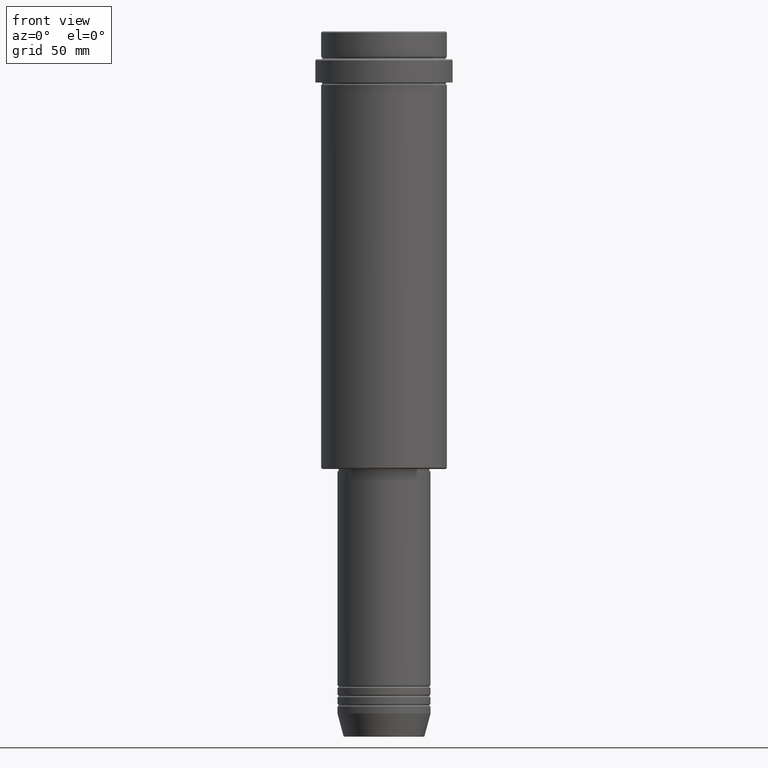
[diagram: clean part render]
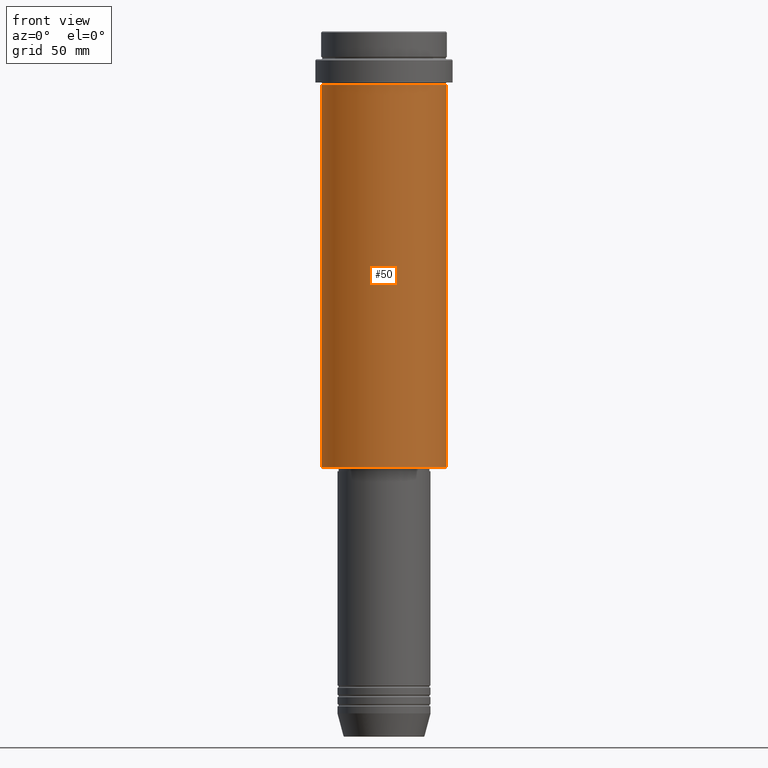
[diagram: same view with one face highlighted and labeled with its STEP entity id]
A machine part, front view. The second image highlights one B-rep face of the part: STEP entity #50.
In plain terms, the highlighted cylindrical surface (partial cylindrical patch) has radius 27 mm, axis along (-0, -0, 1).
Its self-contained STEP definition (entity closure, byte-faithful):
#9 = EDGE_CURVE ( 'NONE', #272, #1048, #648, .T. ) ;
#23 = EDGE_CURVE ( 'NONE', #129, #1048, #727, .T. ) ;
#25 = VECTOR ( 'NONE', #1369, 1000.000000000000000 ) ;
#50 = ADVANCED_FACE ( 'NONE', ( #234 ), #127, .T. ) ;
#103 = DIRECTION ( 'NONE',  ( -0.000000000000000000, -0.000000000000000000, 1.000000000000000000 ) ) ;
#127 = CYLINDRICAL_SURFACE ( 'NONE', #752, 27.00000000000000355 ) ;
#129 = VERTEX_POINT ( 'NONE', #1411 ) ;
#188 = DIRECTION ( 'NONE',  ( -1.000000000000000000, 0.000000000000000000, 0.000000000000000000 ) ) ;
#226 = ORIENTED_EDGE ( 'NONE', *, *, #9, .T. ) ;
#234 = FACE_OUTER_BOUND ( 'NONE', #319, .T. ) ;
#272 = VERTEX_POINT ( 'NONE', #531 ) ;
#273 = CARTESIAN_POINT ( 'NONE',  ( -27.00000000000000355, 3.306546357697854128E-15, -187.5000000000000284 ) ) ;
#281 = VECTOR ( 'NONE', #871, 1000.000000000000000 ) ;
#319 = EDGE_LOOP ( 'NONE', ( #1264, #466, #226, #1417 ) ) ;
#343 = CARTESIAN_POINT ( 'NONE',  ( 0.000000000000000000, 0.000000000000000000, -23.00000000000001421 ) ) ;
#379 = EDGE_CURVE ( 'NONE', #977, #272, #1391, .T. ) ;
#466 = ORIENTED_EDGE ( 'NONE', *, *, #379, .T. ) ;
#499 = AXIS2_PLACEMENT_3D ( 'NONE', #590, #516, #188 ) ;
#516 = DIRECTION ( 'NONE',  ( -0.000000000000000000, -0.000000000000000000, 1.000000000000000000 ) ) ;
#531 = CARTESIAN_POINT ( 'NONE',  ( 27.00000000000000355, 0.000000000000000000, -187.5000000000000284 ) ) ;
#590 = CARTESIAN_POINT ( 'NONE',  ( 0.000000000000000000, 0.000000000000000000, -187.5000000000000284 ) ) ;
#613 = CARTESIAN_POINT ( 'NONE',  ( 27.00000000000000355, 0.000000000000000000, -23.00000000000001421 ) ) ;
#648 = LINE ( 'NONE', #1327, #281 ) ;
#727 = CIRCLE ( 'NONE', #1108, 27.00000000000000355 ) ;
#752 = AXIS2_PLACEMENT_3D ( 'NONE', #1338, #103, #940 ) ;
#766 = DIRECTION ( 'NONE',  ( 1.000000000000000000, 0.000000000000000000, 0.000000000000000000 ) ) ;
#817 = CARTESIAN_POINT ( 'NONE',  ( -27.00000000000000355, 3.306546357697854128E-15, 0.000000000000000000 ) ) ;
#871 = DIRECTION ( 'NONE',  ( -0.000000000000000000, -0.000000000000000000, 1.000000000000000000 ) ) ;
#940 = DIRECTION ( 'NONE',  ( 1.000000000000000000, 0.000000000000000000, 0.000000000000000000 ) ) ;
#977 = VERTEX_POINT ( 'NONE', #273 ) ;
#1048 = VERTEX_POINT ( 'NONE', #613 ) ;
#1108 = AXIS2_PLACEMENT_3D ( 'NONE', #343, #1114, #766 ) ;
#1114 = DIRECTION ( 'NONE',  ( -0.000000000000000000, -0.000000000000000000, 1.000000000000000000 ) ) ;
#1264 = ORIENTED_EDGE ( 'NONE', *, *, #1273, .F. ) ;
#1273 = EDGE_CURVE ( 'NONE', #977, #129, #1313, .T. ) ;
#1313 = LINE ( 'NONE', #817, #25 ) ;
#1327 = CARTESIAN_POINT ( 'NONE',  ( 27.00000000000000355, 0.000000000000000000, 0.000000000000000000 ) ) ;
#1338 = CARTESIAN_POINT ( 'NONE',  ( 0.000000000000000000, 0.000000000000000000, 0.000000000000000000 ) ) ;
#1369 = DIRECTION ( 'NONE',  ( -0.000000000000000000, -0.000000000000000000, 1.000000000000000000 ) ) ;
#1391 = CIRCLE ( 'NONE', #499, 27.00000000000000355 ) ;
#1411 = CARTESIAN_POINT ( 'NONE',  ( -27.00000000000000355, 3.306546357697854128E-15, -23.00000000000001421 ) ) ;
#1417 = ORIENTED_EDGE ( 'NONE', *, *, #23, .F. ) ;